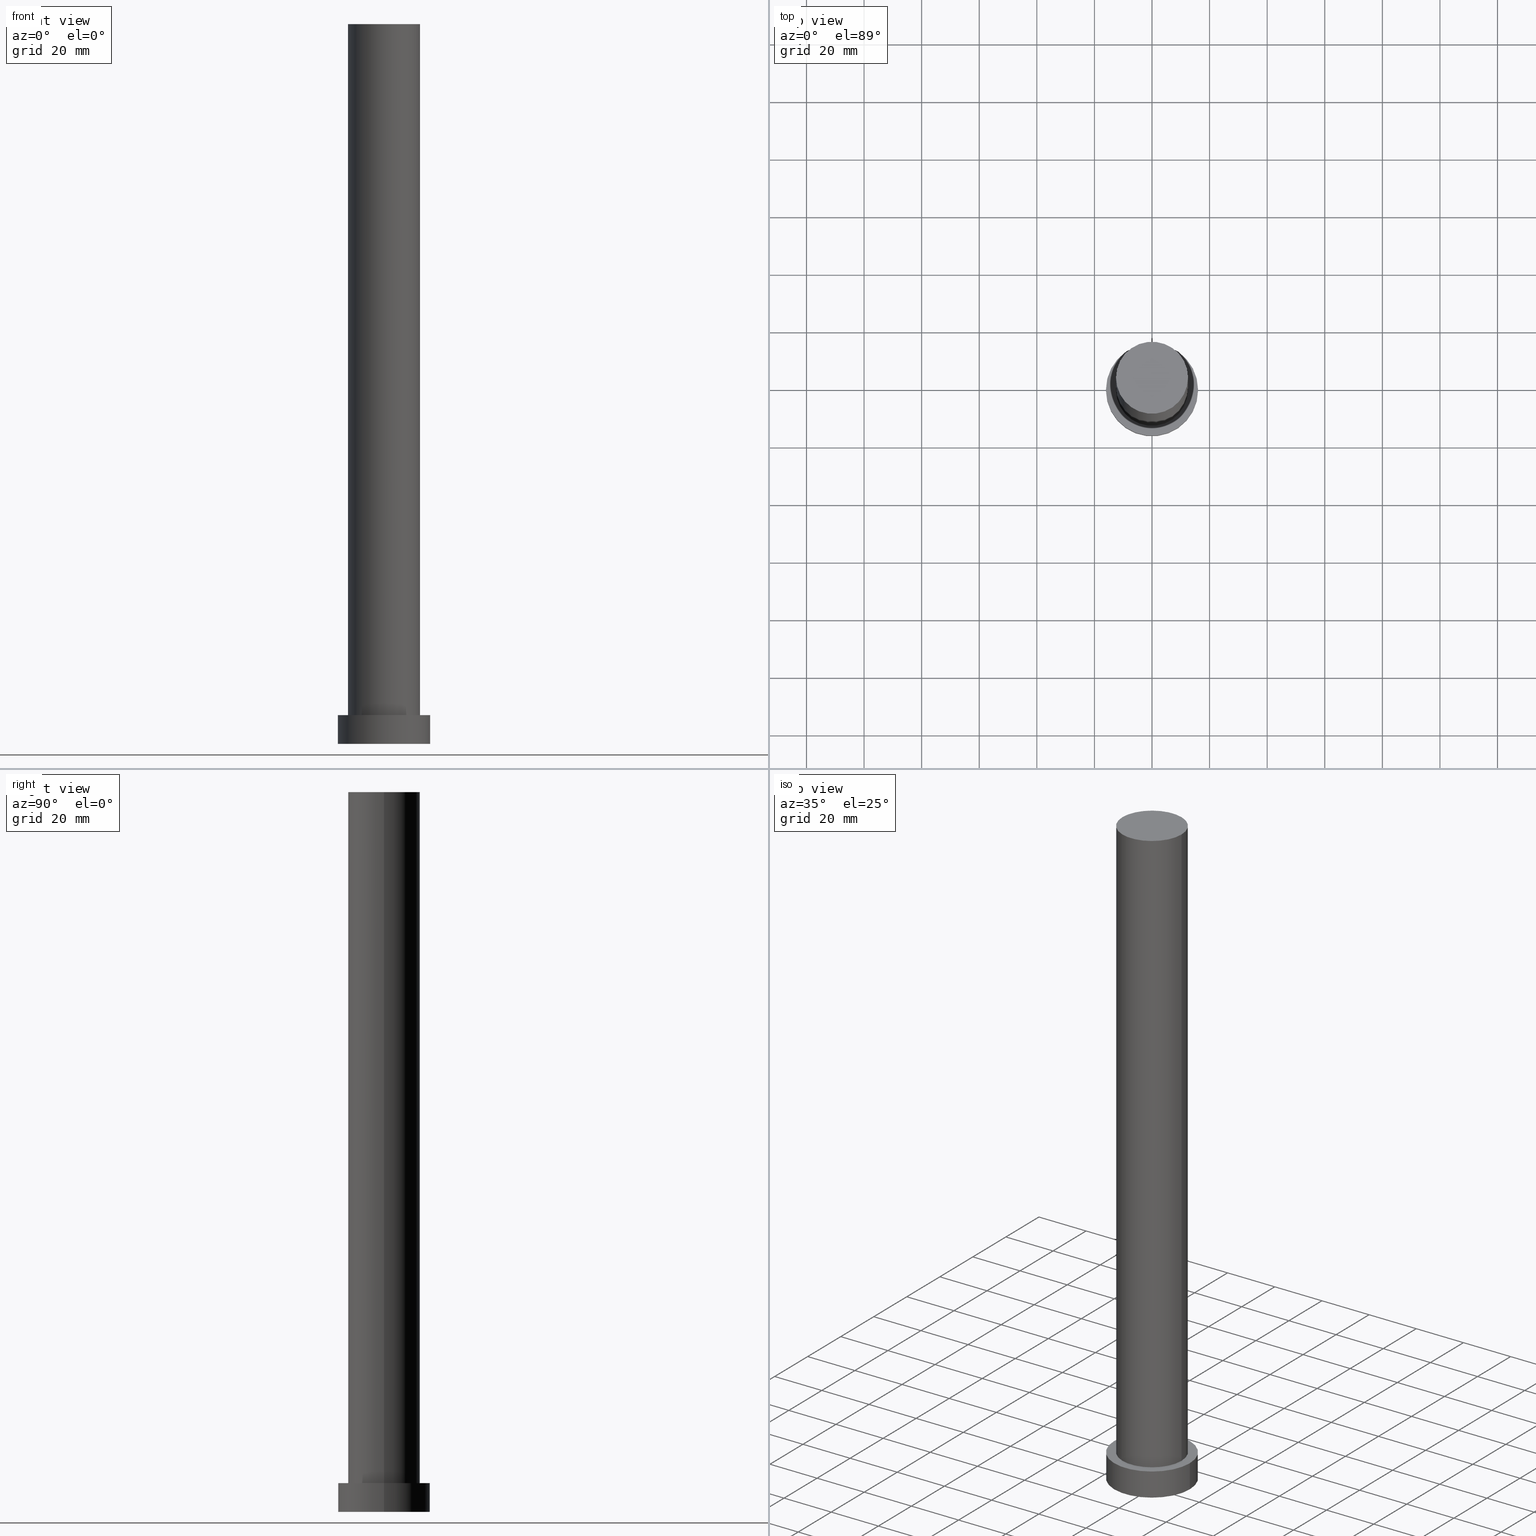
[diagram: canonical four-view strip — front | top / right | iso, engineering-drawing reading convention]
A machine part, canonical four-view strip (front | top / right | iso — engineering-drawing reading convention). The complete STEP part file that produces these views, byte-faithful:
ISO-10303-21;
HEADER;
FILE_DESCRIPTION (( 'STEP AP203' ),
    '1' );
FILE_NAME ('a3b3.STEP',
    '2026-02-06T12:34:52',
    ( '' ),
    ( '' ),
    'SwSTEP 2.0',
    'SolidWorks 2019',
    '' );
FILE_SCHEMA (( 'CONFIG_CONTROL_DESIGN' ));
ENDSEC;

DATA;
#1 = CARTESIAN_POINT ( 'NONE',  ( 12.50000000000000000, 1.530808498934191521E-15, 10.00000000000000000 ) ) ;
#2 = CALENDAR_DATE ( 2026, 6, 2 ) ;
#3 = LOCAL_TIME ( 13, 34, 52.00000000000000000, #177 ) ;
#4 = APPROVAL_STATUS ( 'not_yet_approved' ) ;
#5 = APPROVAL ( #104, 'NEUR�EN�' ) ;
#6 = CIRCLE ( 'NONE', #146, 12.50000000000000000 ) ;
#7 = CIRCLE ( 'NONE', #88, 16.00000000000000000 ) ;
#8 = APPLICATION_CONTEXT ( 'configuration controlled 3d designs of mechanical parts and assemblies' ) ;
#9 = ADVANCED_FACE ( 'NONE', ( #49 ), #204, .T. ) ;
#10 = ORIENTED_EDGE ( 'NONE', *, *, #105, .T. ) ;
#11 = EDGE_LOOP ( 'NONE', ( #29, #112 ) ) ;
#12 = VERTEX_POINT ( 'NONE', #180 ) ;
#13 = PLANE ( 'NONE',  #185 ) ;
#14 = FACE_OUTER_BOUND ( 'NONE', #227, .T. ) ;
#15 = CARTESIAN_POINT ( 'NONE',  ( 0.000000000000000000, 0.000000000000000000, 0.000000000000000000 ) ) ;
#16 = DIRECTION ( 'NONE',  ( -0.000000000000000000, -0.000000000000000000, -1.000000000000000000 ) ) ;
#17 = DESIGN_CONTEXT ( 'detailed design', #8, 'design' ) ;
#18 = VECTOR ( 'NONE', #109, 1000.000000000000000 ) ;
#19 =( LENGTH_UNIT ( ) NAMED_UNIT ( * ) SI_UNIT ( .MILLI., .METRE. ) );
#20 = DIRECTION ( 'NONE',  ( 0.000000000000000000, 0.000000000000000000, 1.000000000000000000 ) ) ;
#21 = DIRECTION ( 'NONE',  ( 0.000000000000000000, 0.000000000000000000, 1.000000000000000000 ) ) ;
#22 = PERSON_AND_ORGANIZATION ( #131, #147 ) ;
#23 = APPLICATION_PROTOCOL_DEFINITION ( 'international standard', 'config_control_design', 1994, #8 ) ;
#24 = CC_DESIGN_SECURITY_CLASSIFICATION ( #153, ( #241 ) ) ;
#25 = CALENDAR_DATE ( 2026, 6, 2 ) ;
#26 = VECTOR ( 'NONE', #16, 1000.000000000000000 ) ;
#27 = EDGE_CURVE ( 'NONE', #202, #165, #170, .T. ) ;
#28 = APPROVAL_ROLE ( '' ) ;
#29 = ORIENTED_EDGE ( 'NONE', *, *, #79, .T. ) ;
#30 = CARTESIAN_POINT ( 'NONE',  ( 0.000000000000000000, 0.000000000000000000, 10.00000000000000000 ) ) ;
#31 = CARTESIAN_POINT ( 'NONE',  ( 0.000000000000000000, 0.000000000000000000, 250.0000000000000000 ) ) ;
#32 = CARTESIAN_POINT ( 'NONE',  ( 0.000000000000000000, 0.000000000000000000, 10.00000000000000000 ) ) ;
#33 = ORIENTED_EDGE ( 'NONE', *, *, #178, .F. ) ;
#34 = LINE ( 'NONE', #94, #18 ) ;
#35 = ADVANCED_FACE ( 'NONE', ( #14 ), #116, .T. ) ;
#36 = CARTESIAN_POINT ( 'NONE',  ( 16.00000000000000000, 1.959434878635765131E-15, 10.00000000000000000 ) ) ;
#37 = CIRCLE ( 'NONE', #245, 16.00000000000000000 ) ;
#38 = DIRECTION ( 'NONE',  ( 0.000000000000000000, 0.000000000000000000, 1.000000000000000000 ) ) ;
#39 = LOCAL_TIME ( 13, 34, 52.00000000000000000, #217 ) ;
#40 = DIRECTION ( 'NONE',  ( 0.000000000000000000, 0.000000000000000000, 1.000000000000000000 ) ) ;
#41 = PERSON_AND_ORGANIZATION_ROLE ( 'design_owner' ) ;
#42 = DATE_AND_TIME ( #160, #3 ) ;
#43 = EDGE_CURVE ( 'NONE', #202, #208, #6, .T. ) ;
#44 = LOCAL_TIME ( 13, 34, 52.00000000000000000, #64 ) ;
#45 = CIRCLE ( 'NONE', #60, 12.50000000000000000 ) ;
#46 = ORIENTED_EDGE ( 'NONE', *, *, #221, .F. ) ;
#47 = ORIENTED_EDGE ( 'NONE', *, *, #218, .F. ) ;
#48 = FACE_OUTER_BOUND ( 'NONE', #51, .T. ) ;
#49 = FACE_OUTER_BOUND ( 'NONE', #85, .T. ) ;
#50 = UNCERTAINTY_MEASURE_WITH_UNIT (LENGTH_MEASURE( 1.000000000000000082E-05 ), #19, 'distance_accuracy_value', 'NONE');
#51 = EDGE_LOOP ( 'NONE', ( #87, #125 ) ) ;
#52 = CARTESIAN_POINT ( 'NONE',  ( 0.000000000000000000, 0.000000000000000000, 10.00000000000000000 ) ) ;
#53 =( NAMED_UNIT ( * ) SI_UNIT ( $, .STERADIAN. ) SOLID_ANGLE_UNIT ( ) );
#54 = CYLINDRICAL_SURFACE ( 'NONE', #252, 16.00000000000000000 ) ;
#55 = CIRCLE ( 'NONE', #86, 12.50000000000000000 ) ;
#56 = DIRECTION ( 'NONE',  ( -1.000000000000000000, 0.000000000000000000, 0.000000000000000000 ) ) ;
#57 = CC_DESIGN_DATE_AND_TIME_ASSIGNMENT ( #215, #117, ( #153 ) ) ;
#58 = DIRECTION ( 'NONE',  ( 0.000000000000000000, 0.000000000000000000, 1.000000000000000000 ) ) ;
#59 = AXIS2_PLACEMENT_3D ( 'NONE', #212, #38, #73 ) ;
#60 = AXIS2_PLACEMENT_3D ( 'NONE', #157, #58, #193 ) ;
#61 = APPROVAL_PERSON_ORGANIZATION ( #119, #142, #80 ) ;
#62 = VERTEX_POINT ( 'NONE', #95 ) ;
#63 = VECTOR ( 'NONE', #130, 1000.000000000000000 ) ;
#64 = COORDINATED_UNIVERSAL_TIME_OFFSET ( 1, 0, .AHEAD. ) ;
#65 = VERTEX_POINT ( 'NONE', #251 ) ;
#66 = DIRECTION ( 'NONE',  ( 0.000000000000000000, 0.000000000000000000, 1.000000000000000000 ) ) ;
#67 = ORIENTED_EDGE ( 'NONE', *, *, #43, .T. ) ;
#68 = CC_DESIGN_PERSON_AND_ORGANIZATION_ASSIGNMENT ( #100, #78, ( #153 ) ) ;
#69 = FACE_OUTER_BOUND ( 'NONE', #11, .T. ) ;
#70 = DIRECTION ( 'NONE',  ( 1.000000000000000000, 0.000000000000000000, 0.000000000000000000 ) ) ;
#71 = DIRECTION ( 'NONE',  ( 1.000000000000000000, 0.000000000000000000, 0.000000000000000000 ) ) ;
#72 = CYLINDRICAL_SURFACE ( 'NONE', #236, 16.00000000000000000 ) ;
#73 = DIRECTION ( 'NONE',  ( 1.000000000000000000, 0.000000000000000000, 0.000000000000000000 ) ) ;
#74 = APPLICATION_PROTOCOL_DEFINITION ( 'international standard', 'config_control_design', 1994, #173 ) ;
#75 = CC_DESIGN_APPROVAL ( #5, ( #241 ) ) ;
#76 = CALENDAR_DATE ( 2026, 6, 2 ) ;
#77 = PRODUCT_DEFINITION_SHAPE ( 'NONE', 'NONE',  #234 ) ;
#78 = PERSON_AND_ORGANIZATION_ROLE ( 'classification_officer' ) ;
#79 = EDGE_CURVE ( 'NONE', #62, #89, #37, .T. ) ;
#80 = APPROVAL_ROLE ( '' ) ;
#81 = AXIS2_PLACEMENT_3D ( 'NONE', #15, #66, #203 ) ;
#82 = APPROVAL_DATE_TIME ( #220, #142 ) ;
#83 = DATE_AND_TIME ( #145, #205 ) ;
#84 = DIRECTION ( 'NONE',  ( -1.000000000000000000, 0.000000000000000000, 0.000000000000000000 ) ) ;
#85 = EDGE_LOOP ( 'NONE', ( #106, #33, #107, #10 ) ) ;
#86 = AXIS2_PLACEMENT_3D ( 'NONE', #154, #20, #71 ) ;
#87 = ORIENTED_EDGE ( 'NONE', *, *, #169, .F. ) ;
#88 = AXIS2_PLACEMENT_3D ( 'NONE', #253, #21, #209 ) ;
#89 = VERTEX_POINT ( 'NONE', #36 ) ;
#90 = DIRECTION ( 'NONE',  ( 1.000000000000000000, 0.000000000000000000, 0.000000000000000000 ) ) ;
#91 = CC_DESIGN_PERSON_AND_ORGANIZATION_ASSIGNMENT ( #159, #237, ( #234 ) ) ;
#92 = DIRECTION ( 'NONE',  ( 0.000000000000000000, 0.000000000000000000, 1.000000000000000000 ) ) ;
#93 = CARTESIAN_POINT ( 'NONE',  ( 0.000000000000000000, 0.000000000000000000, 250.0000000000000000 ) ) ;
#94 = CARTESIAN_POINT ( 'NONE',  ( 16.00000000000000000, 1.959434878635765131E-15, 10.00000000000000000 ) ) ;
#95 = CARTESIAN_POINT ( 'NONE',  ( -16.00000000000000000, 0.000000000000000000, 10.00000000000000000 ) ) ;
#96 = DIRECTION ( 'NONE',  ( -0.000000000000000000, -0.000000000000000000, -1.000000000000000000 ) ) ;
#97 = DIRECTION ( 'NONE',  ( -1.000000000000000000, 0.000000000000000000, 0.000000000000000000 ) ) ;
#98 = APPROVAL_ROLE ( '' ) ;
#99 = CLOSED_SHELL ( 'NONE', ( #242, #224, #163, #197, #247, #9, #35 ) ) ;
#100 = PERSON_AND_ORGANIZATION ( #131, #147 ) ;
#101 = PERSON_AND_ORGANIZATION ( #131, #147 ) ;
#102 = MANIFOLD_SOLID_BREP ( 'P�idat vysunut�m3', #99 ) ;
#103 = APPROVAL_DATE_TIME ( #42, #5 ) ;
#104 = APPROVAL_STATUS ( 'not_yet_approved' ) ;
#105 = EDGE_CURVE ( 'NONE', #65, #165, #55, .T. ) ;
#106 = ORIENTED_EDGE ( 'NONE', *, *, #27, .F. ) ;
#107 = ORIENTED_EDGE ( 'NONE', *, *, #133, .T. ) ;
#108 = ORIENTED_EDGE ( 'NONE', *, *, #182, .F. ) ;
#109 = DIRECTION ( 'NONE',  ( -0.000000000000000000, -0.000000000000000000, -1.000000000000000000 ) ) ;
#110 = ORIENTED_EDGE ( 'NONE', *, *, #243, .F. ) ;
#111 = DIRECTION ( 'NONE',  ( -1.000000000000000000, 0.000000000000000000, 0.000000000000000000 ) ) ;
#112 = ORIENTED_EDGE ( 'NONE', *, *, #243, .T. ) ;
#113 = DIRECTION ( 'NONE',  ( 1.000000000000000000, 0.000000000000000000, -0.000000000000000000 ) ) ;
#114 = DIRECTION ( 'NONE',  ( 0.000000000000000000, 0.000000000000000000, 1.000000000000000000 ) ) ;
#115 = DIRECTION ( 'NONE',  ( 0.000000000000000000, 0.000000000000000000, 1.000000000000000000 ) ) ;
#116 = PLANE ( 'NONE',  #183 ) ;
#117 = DATE_TIME_ROLE ( 'classification_date' ) ;
#118 = CC_DESIGN_DATE_AND_TIME_ASSIGNMENT ( #176, #158, ( #234 ) ) ;
#119 = PERSON_AND_ORGANIZATION ( #131, #147 ) ;
#120 = COORDINATED_UNIVERSAL_TIME_OFFSET ( 1, 0, .AHEAD. ) ;
#121 = APPROVAL ( #195, 'NEUR�EN�' ) ;
#122 = CC_DESIGN_APPROVAL ( #121, ( #234 ) ) ;
#123 = EDGE_LOOP ( 'NONE', ( #181, #148, #149, #189 ) ) ;
#124 = AXIS2_PLACEMENT_3D ( 'NONE', #150, #92, #113 ) ;
#125 = ORIENTED_EDGE ( 'NONE', *, *, #238, .F. ) ;
#126 = DIRECTION ( 'NONE',  ( 0.000000000000000000, 0.000000000000000000, 1.000000000000000000 ) ) ;
#127 = LOCAL_TIME ( 13, 34, 52.00000000000000000, #120 ) ;
#128 = EDGE_LOOP ( 'NONE', ( #108, #144, #225, #151 ) ) ;
#129 = CARTESIAN_POINT ( 'NONE',  ( 16.00000000000000000, 1.959434878635765131E-15, 0.000000000000000000 ) ) ;
#130 = DIRECTION ( 'NONE',  ( -0.000000000000000000, -0.000000000000000000, -1.000000000000000000 ) ) ;
#131 = PERSON ( 'NEUR�EN�', 'NEUR�EN�', 'NEUR�EN�', ('NEUR�EN�'), ('NEUR�EN�'), ('NEUR�EN�') ) ;
#132 =( NAMED_UNIT ( * ) PLANE_ANGLE_UNIT ( ) SI_UNIT ( $, .RADIAN. ) );
#133 = EDGE_CURVE ( 'NONE', #208, #65, #155, .T. ) ;
#134 = CC_DESIGN_PERSON_AND_ORGANIZATION_ASSIGNMENT ( #216, #41, ( #214 ) ) ;
#135 = DIRECTION ( 'NONE',  ( -0.000000000000000000, -0.000000000000000000, -1.000000000000000000 ) ) ;
#136 = CARTESIAN_POINT ( 'NONE',  ( 0.000000000000000000, 0.000000000000000000, 0.000000000000000000 ) ) ;
#137 =( GEOMETRIC_REPRESENTATION_CONTEXT ( 3 ) GLOBAL_UNCERTAINTY_ASSIGNED_CONTEXT ( ( #50 ) ) GLOBAL_UNIT_ASSIGNED_CONTEXT ( ( #19, #132, #53 ) ) REPRESENTATION_CONTEXT ( 'NONE', 'WORKASPACE' ) );
#138 = PERSON_AND_ORGANIZATION ( #131, #147 ) ;
#139 = SECURITY_CLASSIFICATION_LEVEL ( 'unclassified' ) ;
#140 = CIRCLE ( 'NONE', #59, 16.00000000000000000 ) ;
#141 = PERSON_AND_ORGANIZATION ( #131, #147 ) ;
#142 = APPROVAL ( #4, 'NEUR�EN�' ) ;
#143 = APPROVAL_DATE_TIME ( #83, #121 ) ;
#144 = ORIENTED_EDGE ( 'NONE', *, *, #79, .F. ) ;
#145 = CALENDAR_DATE ( 2026, 6, 2 ) ;
#146 = AXIS2_PLACEMENT_3D ( 'NONE', #93, #210, #192 ) ;
#147 = ORGANIZATION ( 'NEUR�EN�', 'NEUR�EN�', '' ) ;
#148 = ORIENTED_EDGE ( 'NONE', *, *, #27, .T. ) ;
#149 = ORIENTED_EDGE ( 'NONE', *, *, #218, .T. ) ;
#150 = CARTESIAN_POINT ( 'NONE',  ( 0.000000000000000000, 0.000000000000000000, 10.00000000000000000 ) ) ;
#151 = ORIENTED_EDGE ( 'NONE', *, *, #169, .T. ) ;
#152 = LINE ( 'NONE', #249, #198 ) ;
#153 = SECURITY_CLASSIFICATION ( '', '', #139 ) ;
#154 = CARTESIAN_POINT ( 'NONE',  ( 0.000000000000000000, 0.000000000000000000, 10.00000000000000000 ) ) ;
#155 = LINE ( 'NONE', #232, #63 ) ;
#156 = FACE_BOUND ( 'NONE', #166, .T. ) ;
#157 = CARTESIAN_POINT ( 'NONE',  ( 0.000000000000000000, 0.000000000000000000, 250.0000000000000000 ) ) ;
#158 = DATE_TIME_ROLE ( 'creation_date' ) ;
#159 = PERSON_AND_ORGANIZATION ( #131, #147 ) ;
#160 = CALENDAR_DATE ( 2026, 6, 2 ) ;
#161 = SHAPE_DEFINITION_REPRESENTATION ( #77, #250 ) ;
#162 = CIRCLE ( 'NONE', #81, 16.00000000000000000 ) ;
#163 = ADVANCED_FACE ( 'NONE', ( #230 ), #54, .T. ) ;
#164 = CC_DESIGN_PERSON_AND_ORGANIZATION_ASSIGNMENT ( #22, #175, ( #241 ) ) ;
#165 = VERTEX_POINT ( 'NONE', #1 ) ;
#166 = EDGE_LOOP ( 'NONE', ( #244, #47 ) ) ;
#167 = MECHANICAL_CONTEXT ( 'NONE', #173, 'mechanical' ) ;
#168 = DIRECTION ( 'NONE',  ( 1.000000000000000000, 0.000000000000000000, 0.000000000000000000 ) ) ;
#169 = EDGE_CURVE ( 'NONE', #12, #222, #140, .T. ) ;
#170 = LINE ( 'NONE', #174, #26 ) ;
#171 = CARTESIAN_POINT ( 'NONE',  ( 12.50000000000000000, 1.530808498934191521E-15, 250.0000000000000000 ) ) ;
#172 = DIRECTION ( 'NONE',  ( 0.000000000000000000, 0.000000000000000000, 1.000000000000000000 ) ) ;
#173 = APPLICATION_CONTEXT ( 'configuration controlled 3d designs of mechanical parts and assemblies' ) ;
#174 = CARTESIAN_POINT ( 'NONE',  ( 12.50000000000000000, 1.530808498934191521E-15, 250.0000000000000000 ) ) ;
#175 = PERSON_AND_ORGANIZATION_ROLE ( 'design_supplier' ) ;
#176 = DATE_AND_TIME ( #25, #44 ) ;
#177 = COORDINATED_UNIVERSAL_TIME_OFFSET ( 1, 0, .AHEAD. ) ;
#178 = EDGE_CURVE ( 'NONE', #208, #202, #45, .T. ) ;
#179 = APPROVAL_PERSON_ORGANIZATION ( #141, #5, #98 ) ;
#180 = CARTESIAN_POINT ( 'NONE',  ( -16.00000000000000000, 0.000000000000000000, 0.000000000000000000 ) ) ;
#181 = ORIENTED_EDGE ( 'NONE', *, *, #43, .F. ) ;
#182 = EDGE_CURVE ( 'NONE', #89, #222, #34, .T. ) ;
#183 = AXIS2_PLACEMENT_3D ( 'NONE', #191, #114, #254 ) ;
#184 = ORIENTED_EDGE ( 'NONE', *, *, #238, .T. ) ;
#185 = AXIS2_PLACEMENT_3D ( 'NONE', #136, #40, #188 ) ;
#186 = FACE_OUTER_BOUND ( 'NONE', #248, .T. ) ;
#187 = DIRECTION ( 'NONE',  ( -0.000000000000000000, -0.000000000000000000, -1.000000000000000000 ) ) ;
#188 = DIRECTION ( 'NONE',  ( 1.000000000000000000, 0.000000000000000000, -0.000000000000000000 ) ) ;
#189 = ORIENTED_EDGE ( 'NONE', *, *, #133, .F. ) ;
#190 = DIRECTION ( 'NONE',  ( -0.000000000000000000, -0.000000000000000000, -1.000000000000000000 ) ) ;
#191 = CARTESIAN_POINT ( 'NONE',  ( 0.000000000000000000, 0.000000000000000000, 250.0000000000000000 ) ) ;
#192 = DIRECTION ( 'NONE',  ( 1.000000000000000000, 0.000000000000000000, 0.000000000000000000 ) ) ;
#193 = DIRECTION ( 'NONE',  ( 1.000000000000000000, 0.000000000000000000, 0.000000000000000000 ) ) ;
#194 = AXIS2_PLACEMENT_3D ( 'NONE', #31, #187, #84 ) ;
#195 = APPROVAL_STATUS ( 'not_yet_approved' ) ;
#196 = PERSON_AND_ORGANIZATION_ROLE ( 'creator' ) ;
#197 = ADVANCED_FACE ( 'NONE', ( #156, #69 ), #207, .T. ) ;
#198 = VECTOR ( 'NONE', #229, 1000.000000000000000 ) ;
#199 = COORDINATED_UNIVERSAL_TIME_OFFSET ( 1, 0, .AHEAD. ) ;
#200 = ORIENTED_EDGE ( 'NONE', *, *, #178, .T. ) ;
#201 = CIRCLE ( 'NONE', #240, 12.50000000000000000 ) ;
#202 = VERTEX_POINT ( 'NONE', #171 ) ;
#203 = DIRECTION ( 'NONE',  ( 1.000000000000000000, 0.000000000000000000, 0.000000000000000000 ) ) ;
#204 = CYLINDRICAL_SURFACE ( 'NONE', #194, 12.50000000000000000 ) ;
#205 = LOCAL_TIME ( 13, 34, 52.00000000000000000, #199 ) ;
#206 = CC_DESIGN_PERSON_AND_ORGANIZATION_ASSIGNMENT ( #138, #196, ( #241 ) ) ;
#207 = PLANE ( 'NONE',  #124 ) ;
#208 = VERTEX_POINT ( 'NONE', #233 ) ;
#209 = DIRECTION ( 'NONE',  ( 1.000000000000000000, 0.000000000000000000, 0.000000000000000000 ) ) ;
#210 = DIRECTION ( 'NONE',  ( 0.000000000000000000, 0.000000000000000000, 1.000000000000000000 ) ) ;
#211 = PRODUCT_RELATED_PRODUCT_CATEGORY ( 'detail', '', ( #214 ) ) ;
#212 = CARTESIAN_POINT ( 'NONE',  ( 0.000000000000000000, 0.000000000000000000, 0.000000000000000000 ) ) ;
#213 = FACE_OUTER_BOUND ( 'NONE', #123, .T. ) ;
#214 = PRODUCT ( 'a3b3', 'a3b3', '', ( #167 ) ) ;
#215 = DATE_AND_TIME ( #2, #39 ) ;
#216 = PERSON_AND_ORGANIZATION ( #131, #147 ) ;
#217 = COORDINATED_UNIVERSAL_TIME_OFFSET ( 1, 0, .AHEAD. ) ;
#218 = EDGE_CURVE ( 'NONE', #165, #65, #201, .T. ) ;
#219 = APPROVAL_PERSON_ORGANIZATION ( #101, #121, #28 ) ;
#220 = DATE_AND_TIME ( #76, #127 ) ;
#221 = EDGE_CURVE ( 'NONE', #62, #12, #152, .T. ) ;
#222 = VERTEX_POINT ( 'NONE', #129 ) ;
#223 = AXIS2_PLACEMENT_3D ( 'NONE', #231, #96, #111 ) ;
#224 = ADVANCED_FACE ( 'NONE', ( #186 ), #72, .T. ) ;
#225 = ORIENTED_EDGE ( 'NONE', *, *, #221, .T. ) ;
#226 = CYLINDRICAL_SURFACE ( 'NONE', #223, 12.50000000000000000 ) ;
#227 = EDGE_LOOP ( 'NONE', ( #200, #67 ) ) ;
#228 = AXIS2_PLACEMENT_3D ( 'NONE', #255, #126, #90 ) ;
#229 = DIRECTION ( 'NONE',  ( -0.000000000000000000, -0.000000000000000000, -1.000000000000000000 ) ) ;
#230 = FACE_OUTER_BOUND ( 'NONE', #128, .T. ) ;
#231 = CARTESIAN_POINT ( 'NONE',  ( 0.000000000000000000, 0.000000000000000000, 250.0000000000000000 ) ) ;
#232 = CARTESIAN_POINT ( 'NONE',  ( -12.50000000000000000, 0.000000000000000000, 250.0000000000000000 ) ) ;
#233 = CARTESIAN_POINT ( 'NONE',  ( -12.50000000000000000, 0.000000000000000000, 250.0000000000000000 ) ) ;
#234 = PRODUCT_DEFINITION ( 'NEZN�M�', '', #241, #17 ) ;
#235 = CARTESIAN_POINT ( 'NONE',  ( 0.000000000000000000, 0.000000000000000000, 10.00000000000000000 ) ) ;
#236 = AXIS2_PLACEMENT_3D ( 'NONE', #32, #190, #56 ) ;
#237 = PERSON_AND_ORGANIZATION_ROLE ( 'creator' ) ;
#238 = EDGE_CURVE ( 'NONE', #222, #12, #162, .T. ) ;
#239 = CC_DESIGN_APPROVAL ( #142, ( #153 ) ) ;
#240 = AXIS2_PLACEMENT_3D ( 'NONE', #30, #115, #168 ) ;
#241 = PRODUCT_DEFINITION_FORMATION_WITH_SPECIFIED_SOURCE ( 'LIBOVOLN�', '', #214, .NOT_KNOWN. ) ;
#242 = ADVANCED_FACE ( 'NONE', ( #213 ), #226, .T. ) ;
#243 = EDGE_CURVE ( 'NONE', #89, #62, #7, .T. ) ;
#244 = ORIENTED_EDGE ( 'NONE', *, *, #105, .F. ) ;
#245 = AXIS2_PLACEMENT_3D ( 'NONE', #235, #172, #70 ) ;
#246 = ORIENTED_EDGE ( 'NONE', *, *, #182, .T. ) ;
#247 = ADVANCED_FACE ( 'NONE', ( #48 ), #13, .F. ) ;
#248 = EDGE_LOOP ( 'NONE', ( #110, #246, #184, #46 ) ) ;
#249 = CARTESIAN_POINT ( 'NONE',  ( -16.00000000000000000, 0.000000000000000000, 10.00000000000000000 ) ) ;
#250 = ADVANCED_BREP_SHAPE_REPRESENTATION ( 'a3b3', ( #102, #228 ), #137 ) ;
#251 = CARTESIAN_POINT ( 'NONE',  ( -12.50000000000000000, 0.000000000000000000, 10.00000000000000000 ) ) ;
#252 = AXIS2_PLACEMENT_3D ( 'NONE', #52, #135, #97 ) ;
#253 = CARTESIAN_POINT ( 'NONE',  ( 0.000000000000000000, 0.000000000000000000, 10.00000000000000000 ) ) ;
#254 = DIRECTION ( 'NONE',  ( 1.000000000000000000, 0.000000000000000000, -0.000000000000000000 ) ) ;
#255 = CARTESIAN_POINT ( 'NONE',  ( 0.000000000000000000, 0.000000000000000000, 0.000000000000000000 ) ) ;
ENDSEC;
END-ISO-10303-21;
